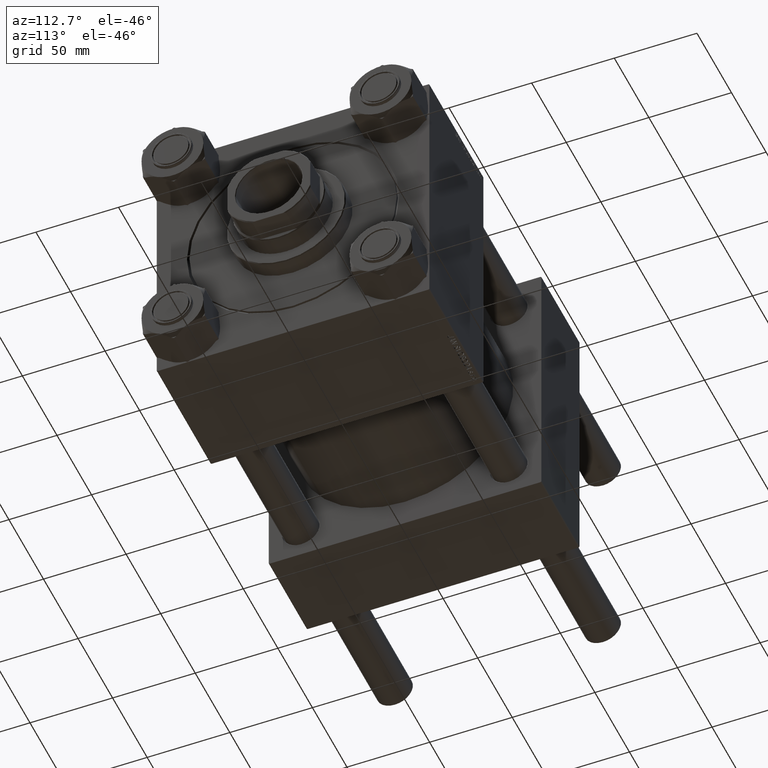
[diagram: clean part render]
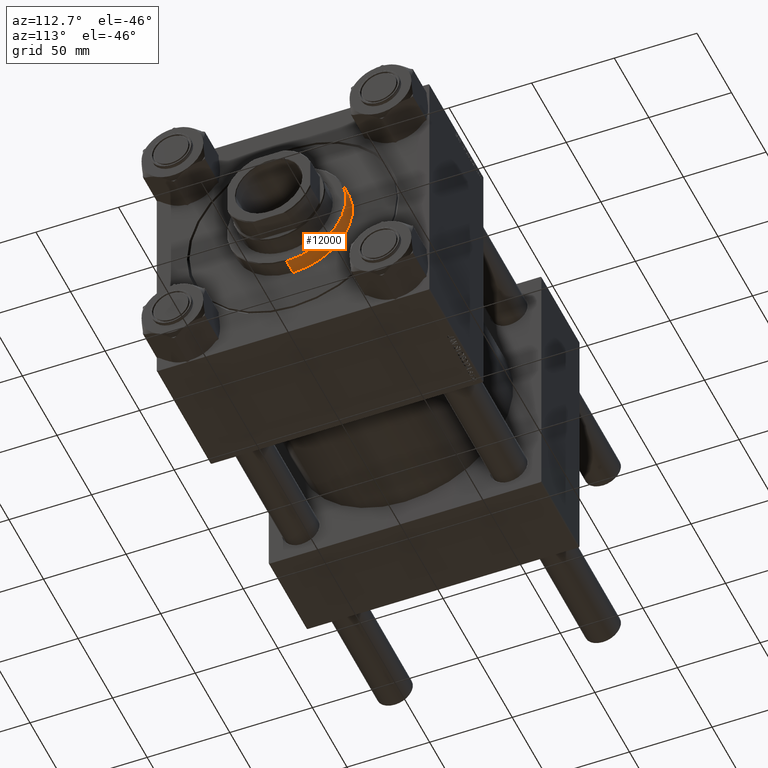
[diagram: same view with one face highlighted and labeled with its STEP entity id]
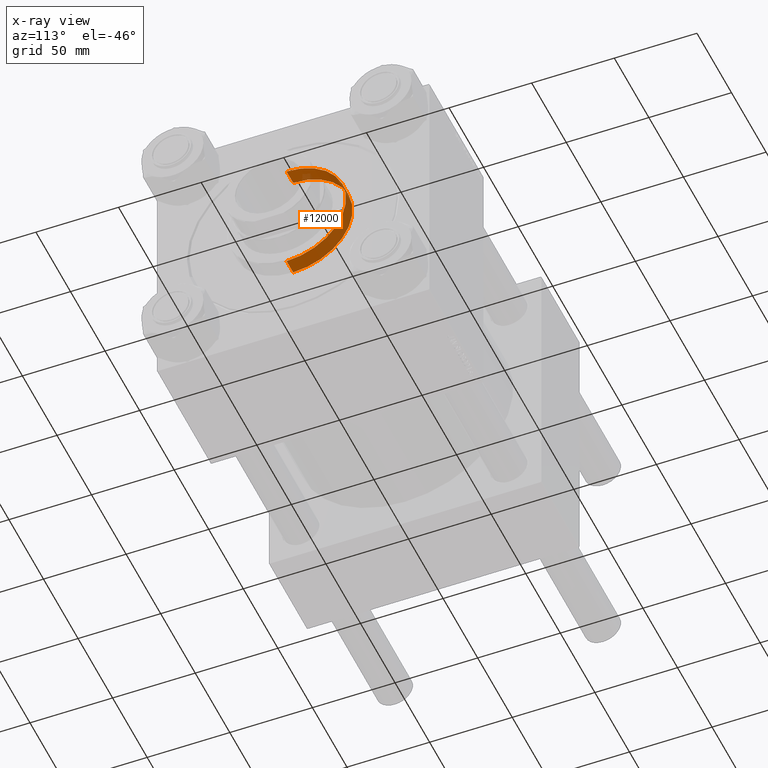
[diagram: x-ray of the same camera — body ghosted, the highlighted face saturated]
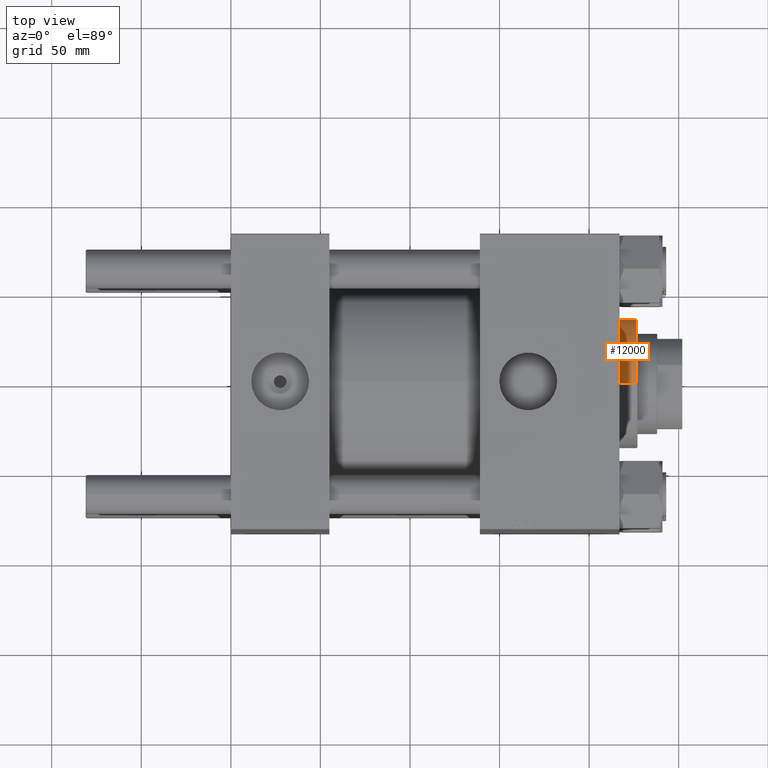
[diagram: same view with one face highlighted and labeled with its STEP entity id]
A machine part, auxiliary view. The second image highlights one B-rep face of the part: STEP entity #12000.
The next image is the same camera in x-ray: the body ghosted, the highlighted face saturated — about 4% of this face is hidden behind the body in this view.
A second angle (top view) of the same face is appended — the face is thin or edge-on in the first view.
In plain terms, the highlighted cylindrical surface (partial cylindrical patch) has radius 36 mm, axis along (-1, -0, 0).
Its self-contained STEP definition (entity closure, byte-faithful):
#707 = CARTESIAN_POINT ( 'NONE',  ( 36.00000000000000000, 4.408728476930470856E-15, 38.20000000000001705 ) ) ;
#2347 = EDGE_CURVE ( 'NONE', #23569, #36441, #44831, .T. ) ;
#5431 = DIRECTION ( 'NONE',  ( -1.000000000000000000, 0.000000000000000000, 0.000000000000000000 ) ) ;
#6653 = AXIS2_PLACEMENT_3D ( 'NONE', #8271, #38796, #23781 ) ;
#8271 = CARTESIAN_POINT ( 'NONE',  ( 0.000000000000000000, 0.000000000000000000, 28.69999999999999929 ) ) ;
#8982 = CARTESIAN_POINT ( 'NONE',  ( 0.000000000000000000, 0.000000000000000000, 38.69999999999999574 ) ) ;
#10267 = EDGE_CURVE ( 'NONE', #31881, #22148, #34421, .T. ) ;
#12000 = ADVANCED_FACE ( 'NONE', ( #40269 ), #43834, .T. ) ;
#13165 = ORIENTED_EDGE ( 'NONE', *, *, #2347, .T. ) ;
#14644 = CARTESIAN_POINT ( 'NONE',  ( 0.000000000000000000, 0.000000000000000000, 38.20000000000001705 ) ) ;
#15009 = AXIS2_PLACEMENT_3D ( 'NONE', #8982, #21179, #5431 ) ;
#15163 = LINE ( 'NONE', #35229, #19230 ) ;
#16141 = LINE ( 'NONE', #36209, #27500 ) ;
#19230 = VECTOR ( 'NONE', #42621, 1000.000000000000000 ) ;
#21179 = DIRECTION ( 'NONE',  ( -0.000000000000000000, -0.000000000000000000, -1.000000000000000000 ) ) ;
#22148 = VERTEX_POINT ( 'NONE', #707 ) ;
#23569 = VERTEX_POINT ( 'NONE', #45603 ) ;
#23781 = DIRECTION ( 'NONE',  ( 1.000000000000000000, 0.000000000000000000, 0.000000000000000000 ) ) ;
#23907 = EDGE_LOOP ( 'NONE', ( #45714, #49627, #13165, #29092 ) ) ;
#27500 = VECTOR ( 'NONE', #28572, 1000.000000000000000 ) ;
#28572 = DIRECTION ( 'NONE',  ( -0.000000000000000000, -0.000000000000000000, -1.000000000000000000 ) ) ;
#29092 = ORIENTED_EDGE ( 'NONE', *, *, #46851, .F. ) ;
#29096 = CARTESIAN_POINT ( 'NONE',  ( -36.00000000000000000, 0.000000000000000000, 38.20000000000001705 ) ) ;
#30144 = DIRECTION ( 'NONE',  ( 0.000000000000000000, 0.000000000000000000, -1.000000000000000000 ) ) ;
#31881 = VERTEX_POINT ( 'NONE', #29096 ) ;
#34421 = CIRCLE ( 'NONE', #49881, 36.00000000000000000 ) ;
#35229 = CARTESIAN_POINT ( 'NONE',  ( 36.00000000000000000, 4.408728476930470856E-15, 38.69999999999999574 ) ) ;
#36209 = CARTESIAN_POINT ( 'NONE',  ( -36.00000000000000000, 0.000000000000000000, 38.69999999999999574 ) ) ;
#36441 = VERTEX_POINT ( 'NONE', #39568 ) ;
#38406 = EDGE_CURVE ( 'NONE', #22148, #23569, #15163, .T. ) ;
#38796 = DIRECTION ( 'NONE',  ( 0.000000000000000000, 0.000000000000000000, 1.000000000000000000 ) ) ;
#39568 = CARTESIAN_POINT ( 'NONE',  ( -36.00000000000000000, 0.000000000000000000, 28.69999999999999929 ) ) ;
#40269 = FACE_OUTER_BOUND ( 'NONE', #23907, .T. ) ;
#42621 = DIRECTION ( 'NONE',  ( -0.000000000000000000, -0.000000000000000000, -1.000000000000000000 ) ) ;
#43834 = CYLINDRICAL_SURFACE ( 'NONE', #15009, 36.00000000000000000 ) ;
#44831 = CIRCLE ( 'NONE', #6653, 36.00000000000000000 ) ;
#45603 = CARTESIAN_POINT ( 'NONE',  ( 36.00000000000000000, 4.408728476930470856E-15, 28.69999999999999929 ) ) ;
#45674 = DIRECTION ( 'NONE',  ( 1.000000000000000000, 0.000000000000000000, 0.000000000000000000 ) ) ;
#45714 = ORIENTED_EDGE ( 'NONE', *, *, #10267, .T. ) ;
#46851 = EDGE_CURVE ( 'NONE', #31881, #36441, #16141, .T. ) ;
#49627 = ORIENTED_EDGE ( 'NONE', *, *, #38406, .T. ) ;
#49881 = AXIS2_PLACEMENT_3D ( 'NONE', #14644, #30144, #45674 ) ;